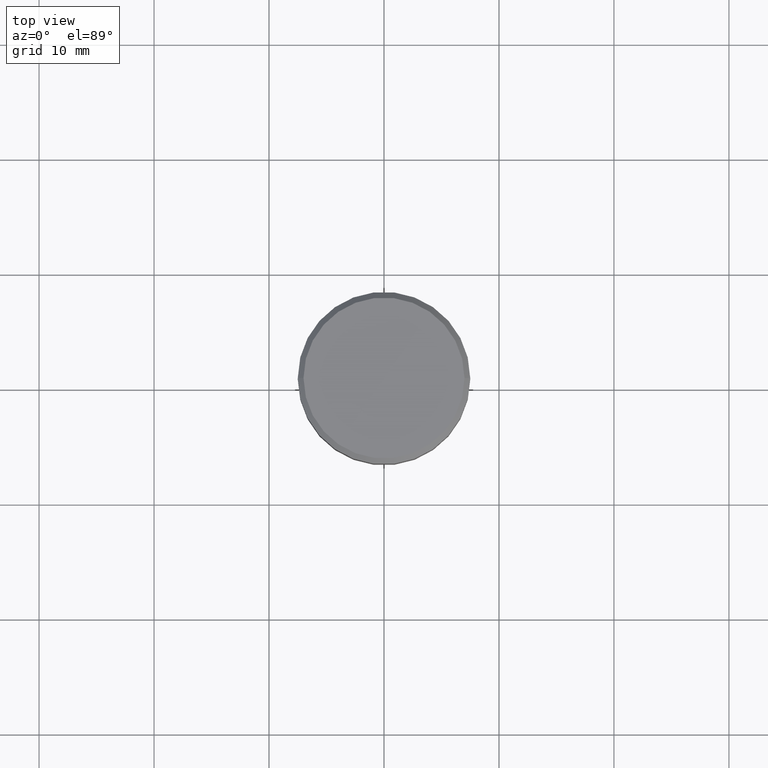
[diagram: clean part render]
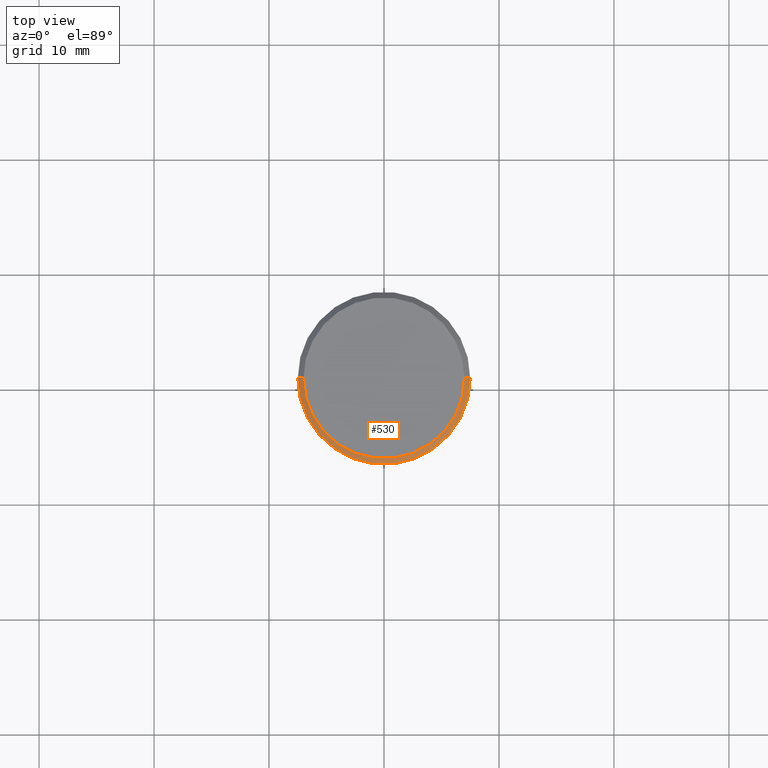
[diagram: same view with one face highlighted and labeled with its STEP entity id]
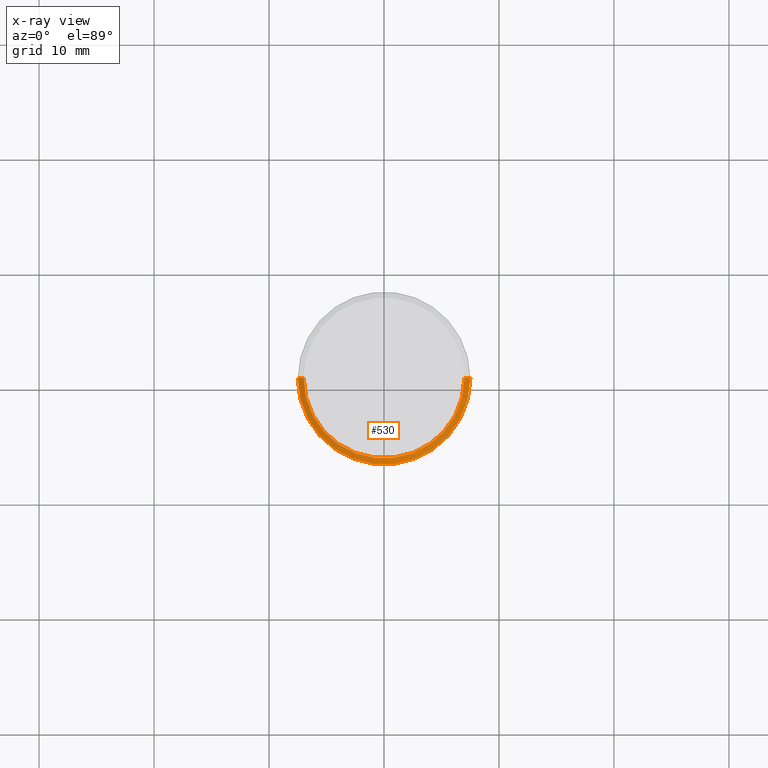
[diagram: x-ray of the same camera — body ghosted, the highlighted face saturated]
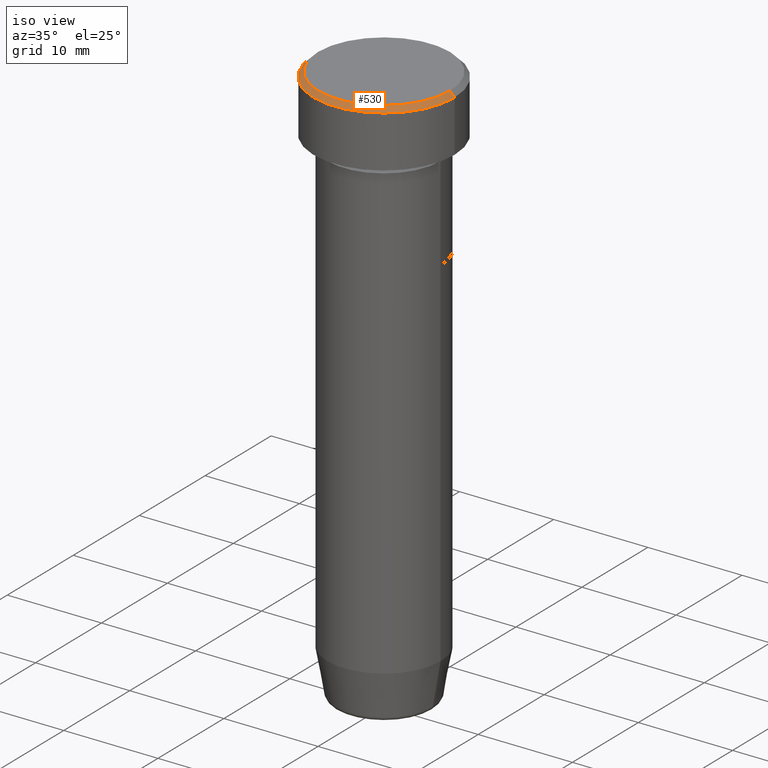
[diagram: same view with one face highlighted and labeled with its STEP entity id]
A machine part, top view. The second image highlights one B-rep face of the part: STEP entity #530.
The next image is the same camera in x-ray: the body ghosted, the highlighted face saturated — about 0% of this face is hidden behind the body in this view.
A second angle (iso view) of the same face is appended — the face is thin or edge-on in the first view.
In plain terms, the highlighted conical surface has half-angle 45 deg.
Its self-contained STEP definition (entity closure, byte-faithful):
#7 = VERTEX_POINT ( 'NONE', #182 ) ;
#14 = DIRECTION ( 'NONE',  ( -1.000000000000000000, 0.000000000000000000, 0.000000000000000000 ) ) ;
#31 = AXIS2_PLACEMENT_3D ( 'NONE', #561, #287, #300 ) ;
#67 = CARTESIAN_POINT ( 'NONE',  ( 0.000000000000000000, 0.000000000000000000, -0.4999999999999987232 ) ) ;
#105 = DIRECTION ( 'NONE',  ( 0.000000000000000000, 0.000000000000000000, -1.000000000000000000 ) ) ;
#137 = LINE ( 'NONE', #437, #463 ) ;
#148 = EDGE_CURVE ( 'NONE', #7, #295, #329, .T. ) ;
#164 = CARTESIAN_POINT ( 'NONE',  ( 0.000000000000000000, 0.000000000000000000, 0.000000000000000000 ) ) ;
#181 = DIRECTION ( 'NONE',  ( -0.7071067811865469066, 0.000000000000000000, -0.7071067811865481278 ) ) ;
#182 = CARTESIAN_POINT ( 'NONE',  ( 7.500000000000000000, 0.000000000000000000, -0.4999999999999987232 ) ) ;
#187 = DIRECTION ( 'NONE',  ( 1.000000000000000000, 0.000000000000000000, 0.000000000000000000 ) ) ;
#199 = EDGE_CURVE ( 'NONE', #245, #7, #137, .T. ) ;
#217 = AXIS2_PLACEMENT_3D ( 'NONE', #67, #284, #187 ) ;
#239 = AXIS2_PLACEMENT_3D ( 'NONE', #164, #105, #14 ) ;
#245 = VERTEX_POINT ( 'NONE', #465 ) ;
#284 = DIRECTION ( 'NONE',  ( 0.000000000000000000, 0.000000000000000000, -1.000000000000000000 ) ) ;
#285 = ORIENTED_EDGE ( 'NONE', *, *, #331, .T. ) ;
#287 = DIRECTION ( 'NONE',  ( -0.000000000000000000, -0.000000000000000000, 1.000000000000000000 ) ) ;
#295 = VERTEX_POINT ( 'NONE', #413 ) ;
#300 = DIRECTION ( 'NONE',  ( 1.000000000000000000, 0.000000000000000000, 0.000000000000000000 ) ) ;
#313 = ORIENTED_EDGE ( 'NONE', *, *, #445, .F. ) ;
#329 = CIRCLE ( 'NONE', #217, 7.500000000000000000 ) ;
#331 = EDGE_CURVE ( 'NONE', #398, #295, #427, .T. ) ;
#344 = FACE_OUTER_BOUND ( 'NONE', #404, .T. ) ;
#348 = ORIENTED_EDGE ( 'NONE', *, *, #199, .F. ) ;
#388 = ORIENTED_EDGE ( 'NONE', *, *, #148, .F. ) ;
#398 = VERTEX_POINT ( 'NONE', #545 ) ;
#404 = EDGE_LOOP ( 'NONE', ( #348, #313, #285, #388 ) ) ;
#413 = CARTESIAN_POINT ( 'NONE',  ( -7.500000000000000000, 9.184850993605147944E-16, -0.4999999999999987232 ) ) ;
#417 = CIRCLE ( 'NONE', #31, 7.000000000000001776 ) ;
#427 = LINE ( 'NONE', #593, #444 ) ;
#437 = CARTESIAN_POINT ( 'NONE',  ( 7.000000000000001776, 8.572527594031474176E-16, 0.000000000000000000 ) ) ;
#444 = VECTOR ( 'NONE', #181, 1000.000000000000114 ) ;
#445 = EDGE_CURVE ( 'NONE', #398, #245, #417, .T. ) ;
#453 = CONICAL_SURFACE ( 'NONE', #239, 7.000000000000001776, 0.7853981633974473908 ) ;
#463 = VECTOR ( 'NONE', #564, 1000.000000000000114 ) ;
#465 = CARTESIAN_POINT ( 'NONE',  ( 7.000000000000001776, 8.878689293818310074E-16, 0.000000000000000000 ) ) ;
#530 = ADVANCED_FACE ( 'NONE', ( #344 ), #453, .T. ) ;
#545 = CARTESIAN_POINT ( 'NONE',  ( -7.000000000000001776, 0.000000000000000000, 0.000000000000000000 ) ) ;
#561 = CARTESIAN_POINT ( 'NONE',  ( 0.000000000000000000, 0.000000000000000000, 0.000000000000000000 ) ) ;
#564 = DIRECTION ( 'NONE',  ( 0.7071067811865469066, 8.659560562354925463E-17, -0.7071067811865481278 ) ) ;
#593 = CARTESIAN_POINT ( 'NONE',  ( -7.000000000000001776, 0.000000000000000000, 0.000000000000000000 ) ) ;